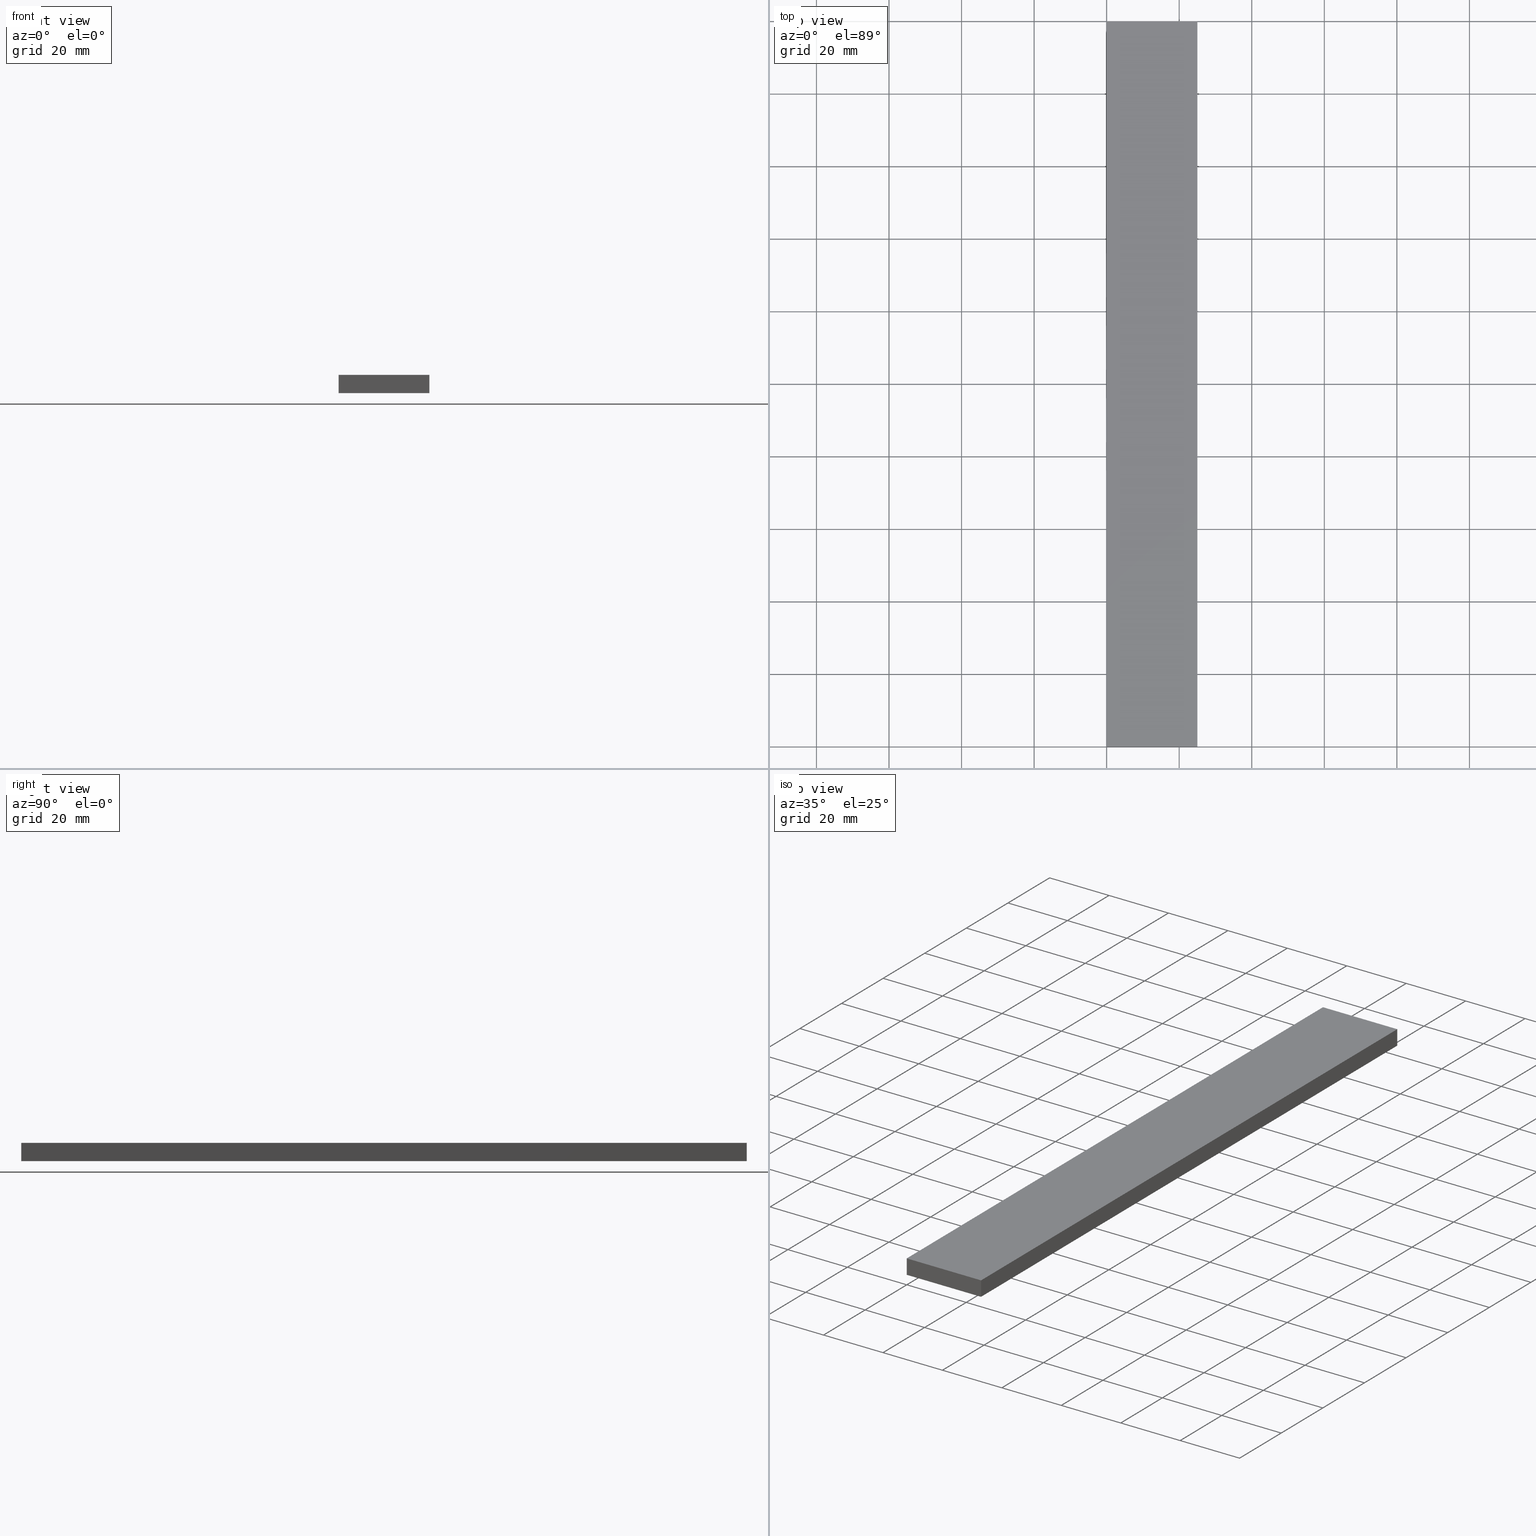
[diagram: canonical four-view strip — front | top / right | iso, engineering-drawing reading convention]
A machine part, canonical four-view strip (front | top / right | iso — engineering-drawing reading convention). The complete STEP part file that produces these views, byte-faithful:
ISO-10303-21;
HEADER;
FILE_DESCRIPTION (( 'STEP AP214' ),
    '1' );
FILE_NAME ('TM_340_5.STEP',
    '2016-05-09T05:15:45',
    ( '' ),
    ( '' ),
    'SwSTEP 2.0',
    'SolidWorks 2015',
    '' );
FILE_SCHEMA (( 'AUTOMOTIVE_DESIGN' ));
ENDSEC;

DATA;
#1 = EDGE_CURVE ( 'NONE', #182, #188, #45, .T. ) ;
#2 = LINE ( 'NONE', #11, #48 ) ;
#3 = CARTESIAN_POINT ( 'NONE',  ( 25.00000000000000000, 1000.000000000000000, 5.000000000000000000 ) ) ;
#4 = APPLICATION_PROTOCOL_DEFINITION ( 'draft international standard', 'automotive_design', 1998, #149 ) ;
#5 = CARTESIAN_POINT ( 'NONE',  ( 0.0000000000000000000, 0.0000000000000000000, 0.0000000000000000000 ) ) ;
#6 = ORIENTED_EDGE ( 'NONE', *, *, #71, .T. ) ;
#7 = SHAPE_REPRESENTATION ( 'rubber foam', ( #110 ), #78 ) ;
#8 = CARTESIAN_POINT ( 'NONE',  ( 0.0000000000000000000, 0.0000000000000000000, 0.0000000000000000000 ) ) ;
#9 = LINE ( 'NONE', #32, #164 ) ;
#10 = CARTESIAN_POINT ( 'NONE',  ( 0.0000000000000000000, 0.0000000000000000000, 0.0000000000000000000 ) ) ;
#11 = CARTESIAN_POINT ( 'NONE',  ( 25.00000000000000000, 0.0000000000000000000, 0.0000000000000000000 ) ) ;
#12 = ORIENTED_EDGE ( 'NONE', *, *, #104, .T. ) ;
#13 = CARTESIAN_POINT ( 'NONE',  ( 0.0000000000000000000, 200.0000000000000000, 5.000000000000000000 ) ) ;
#14 = CARTESIAN_POINT ( 'NONE',  ( 0.0000000000000000000, 0.0000000000000000000, 5.000000000000000000 ) ) ;
#15 = DIRECTION ( 'NONE',  ( 1.000000000000000000, 0.0000000000000000000, 0.0000000000000000000 ) ) ;
#16 = UNCERTAINTY_MEASURE_WITH_UNIT (LENGTH_MEASURE( 1.000000000000000100E-005 ), #224, 'distance_accuracy_value', 'NONE');
#17 = EDGE_CURVE ( 'NONE', #188, #22, #199, .T. ) ;
#18 = ORIENTED_EDGE ( 'NONE', *, *, #126, .T. ) ;
#19 = ADVANCED_FACE ( 'NONE', ( #238 ), #217, .T. ) ;
#20 =( NAMED_UNIT ( * ) PLANE_ANGLE_UNIT ( ) SI_UNIT ( $, .RADIAN. ) );
#21 = ORIENTED_EDGE ( 'NONE', *, *, #1, .T. ) ;
#22 = VERTEX_POINT ( 'NONE', #200 ) ;
#23 = PRODUCT_CONTEXT ( 'NONE', #108, 'mechanical' ) ;
#24 = VECTOR ( 'NONE', #63, 1000.000000000000000 ) ;
#25 = DIRECTION ( 'NONE',  ( 0.0000000000000000000, 0.0000000000000000000, 1.000000000000000000 ) ) ;
#26 = ORIENTED_EDGE ( 'NONE', *, *, #17, .T. ) ;
#27 = DIRECTION ( 'NONE',  ( 1.000000000000000000, 0.0000000000000000000, 0.0000000000000000000 ) ) ;
#28 = ORIENTED_EDGE ( 'NONE', *, *, #38, .F. ) ;
#29 = VECTOR ( 'NONE', #140, 1000.000000000000000 ) ;
#30 = DIRECTION ( 'NONE',  ( -1.000000000000000000, 0.0000000000000000000, 0.0000000000000000000 ) ) ;
#31 = SHAPE_REPRESENTATION_RELATIONSHIP ( 'NONE' , 'NONE' ,  #7, #175 ) ;
#32 = CARTESIAN_POINT ( 'NONE',  ( 25.00000000000000000, 200.0000000000000000, 5.000000000000000000 ) ) ;
#33 = UNCERTAINTY_MEASURE_WITH_UNIT (LENGTH_MEASURE( 1.000000000000000100E-005 ), #167, 'distance_accuracy_value', 'NONE');
#34 = SURFACE_STYLE_FILL_AREA ( #46 ) ;
#35 = EDGE_LOOP ( 'NONE', ( #26, #208, #28, #21 ) ) ;
#36 = ADVANCED_FACE ( 'NONE', ( #112 ), #142, .F. ) ;
#37 = EDGE_LOOP ( 'NONE', ( #18, #118, #174, #12 ) ) ;
#38 = EDGE_CURVE ( 'NONE', #182, #51, #9, .T. ) ;
#39 = VECTOR ( 'NONE', #47, 1000.000000000000000 ) ;
#40 = VECTOR ( 'NONE', #117, 1000.000000000000000 ) ;
#41 = EDGE_CURVE ( 'NONE', #143, #213, #54, .T. ) ;
#42 = APPLICATION_PROTOCOL_DEFINITION ( 'draft international standard', 'automotive_design', 1998, #179 ) ;
#43 = CARTESIAN_POINT ( 'NONE',  ( 0.0000000000000000000, 0.0000000000000000000, 0.0000000000000000000 ) ) ;
#44 = DIRECTION ( 'NONE',  ( 1.000000000000000000, 0.0000000000000000000, 0.0000000000000000000 ) ) ;
#45 = LINE ( 'NONE', #3, #105 ) ;
#46 = FILL_AREA_STYLE ('',( #194 ) ) ;
#47 = DIRECTION ( 'NONE',  ( 0.0000000000000000000, 0.0000000000000000000, 1.000000000000000000 ) ) ;
#48 = VECTOR ( 'NONE', #30, 1000.000000000000000 ) ;
#49 = CARTESIAN_POINT ( 'NONE',  ( 0.0000000000000000000, 1000.000000000000000, 5.000000000000000000 ) ) ;
#50 = DIRECTION ( 'NONE',  ( 1.000000000000000000, 0.0000000000000000000, 0.0000000000000000000 ) ) ;
#51 = VERTEX_POINT ( 'NONE', #53 ) ;
#52 =( NAMED_UNIT ( * ) PLANE_ANGLE_UNIT ( ) SI_UNIT ( $, .RADIAN. ) );
#53 = CARTESIAN_POINT ( 'NONE',  ( 25.00000000000000000, 200.0000000000000000, 0.0000000000000000000 ) ) ;
#54 = LINE ( 'NONE', #75, #218 ) ;
#55 = PRESENTATION_STYLE_ASSIGNMENT (( #151 ) ) ;
#56 = AXIS2_PLACEMENT_3D ( 'NONE', #136, #172, #15 ) ;
#57 = MANIFOLD_SOLID_BREP ( '���߰�1', #69 ) ;
#58 = VERTEX_POINT ( 'NONE', #14 ) ;
#59 = PRODUCT_DEFINITION ( 'UNKNOWN', '', #132, #101 ) ;
#60 = SURFACE_SIDE_STYLE ('',( #34 ) ) ;
#61 = PRODUCT_CONTEXT ( 'NONE', #84, 'mechanical' ) ;
#62 = AXIS2_PLACEMENT_3D ( 'NONE', #169, #114, #184 ) ;
#63 = DIRECTION ( 'NONE',  ( 1.000000000000000000, 0.0000000000000000000, 0.0000000000000000000 ) ) ;
#64 = DIRECTION ( 'NONE',  ( 1.000000000000000000, 0.0000000000000000000, 0.0000000000000000000 ) ) ;
#65 = DIRECTION ( 'NONE',  ( 0.0000000000000000000, -1.000000000000000000, 0.0000000000000000000 ) ) ;
#66 = DIRECTION ( 'NONE',  ( 1.000000000000000000, 0.0000000000000000000, 0.0000000000000000000 ) ) ;
#67 = PRODUCT ( 'rubber foam', 'rubber foam', '', ( #23 ) ) ;
#68 = STYLED_ITEM ( 'NONE', ( #173 ), #57 ) ;
#69 = CLOSED_SHELL ( 'NONE', ( #102, #190, #176, #125, #19, #36 ) ) ;
#70 = SHAPE_DEFINITION_REPRESENTATION ( #231, #91 ) ;
#71 = EDGE_CURVE ( 'NONE', #213, #58, #148, .T. ) ;
#72 = CARTESIAN_POINT ( 'NONE',  ( 25.00000000000000000, 200.0000000000000000, 0.0000000000000000000 ) ) ;
#73 =( LENGTH_UNIT ( ) NAMED_UNIT ( * ) SI_UNIT ( .MILLI., .METRE. ) );
#74 = PRODUCT ( 'TM_340_5', 'TM_340_5', '', ( #61 ) ) ;
#75 = CARTESIAN_POINT ( 'NONE',  ( 0.0000000000000000000, 200.0000000000000000, 0.0000000000000000000 ) ) ;
#76 = LINE ( 'NONE', #72, #226 ) ;
#77 = ORIENTED_EDGE ( 'NONE', *, *, #17, .F. ) ;
#78 =( GEOMETRIC_REPRESENTATION_CONTEXT ( 3 ) GLOBAL_UNCERTAINTY_ASSIGNED_CONTEXT ( ( #85 ) ) GLOBAL_UNIT_ASSIGNED_CONTEXT ( ( #225, #107, #209 ) ) REPRESENTATION_CONTEXT ( 'NONE', 'WORKASPACE' ) );
#79 = LINE ( 'NONE', #196, #24 ) ;
#80 = ORIENTED_EDGE ( 'NONE', *, *, #41, .F. ) ;
#81 = EDGE_LOOP ( 'NONE', ( #109, #237, #77, #197 ) ) ;
#82 = AXIS2_PLACEMENT_3D ( 'NONE', #122, #98, #206 ) ;
#83 = EDGE_CURVE ( 'NONE', #143, #202, #145, .T. ) ;
#84 = APPLICATION_CONTEXT ( 'automotive_design' ) ;
#85 = UNCERTAINTY_MEASURE_WITH_UNIT (LENGTH_MEASURE( 1.000000000000000100E-005 ), #225, 'distance_accuracy_value', 'NONE');
#86 = CARTESIAN_POINT ( 'NONE',  ( 0.0000000000000000000, 0.0000000000000000000, 0.0000000000000000000 ) ) ;
#87 = PRODUCT_DEFINITION ( 'UNKNOWN', '', #103, #92 ) ;
#88 = EDGE_CURVE ( 'NONE', #202, #58, #189, .T. ) ;
#89 = DIRECTION ( 'NONE',  ( 0.0000000000000000000, 0.0000000000000000000, -1.000000000000000000 ) ) ;
#90 = SURFACE_STYLE_FILL_AREA ( #120 ) ;
#91 = SHAPE_REPRESENTATION ( 'TM_340_5', ( #221, #204 ), #210 ) ;
#92 = PRODUCT_DEFINITION_CONTEXT ( 'detailed design', #179, 'design' ) ;
#93 = CARTESIAN_POINT ( 'NONE',  ( 25.00000000000000000, 200.0000000000000000, 5.000000000000000000 ) ) ;
#94 = CARTESIAN_POINT ( 'NONE',  ( 0.0000000000000000000, 0.0000000000000000000, 0.0000000000000000000 ) ) ;
#95 = AXIS2_PLACEMENT_3D ( 'NONE', #49, #89, #211 ) ;
#96 = DIRECTION ( 'NONE',  ( 0.0000000000000000000, 0.0000000000000000000, -1.000000000000000000 ) ) ;
#97 = SURFACE_SIDE_STYLE ('',( #90 ) ) ;
#98 = DIRECTION ( 'NONE',  ( -0.0000000000000000000, 1.000000000000000000, 0.0000000000000000000 ) ) ;
#99 = ORIENTED_EDGE ( 'NONE', *, *, #1, .F. ) ;
#100 = PRESENTATION_LAYER_ASSIGNMENT (  '', '', ( #68 ) ) ;
#101 = PRODUCT_DEFINITION_CONTEXT ( 'detailed design', #149, 'design' ) ;
#102 = ADVANCED_FACE ( 'NONE', ( #232 ), #186, .F. ) ;
#103 = PRODUCT_DEFINITION_FORMATION_WITH_SPECIFIED_SOURCE ( 'ANY', '', #74, .NOT_KNOWN. ) ;
#104 = EDGE_CURVE ( 'NONE', #51, #22, #185, .T. ) ;
#105 = VECTOR ( 'NONE', #65, 1000.000000000000000 ) ;
#106 = PRODUCT_DEFINITION_SHAPE ( 'NONE', 'NONE',  #59 ) ;
#107 =( NAMED_UNIT ( * ) PLANE_ANGLE_UNIT ( ) SI_UNIT ( $, .RADIAN. ) );
#108 = APPLICATION_CONTEXT ( 'automotive_design' ) ;
#109 = ORIENTED_EDGE ( 'NONE', *, *, #88, .F. ) ;
#110 = AXIS2_PLACEMENT_3D ( 'NONE', #86, #198, #64 ) ;
#111 = DIRECTION ( 'NONE',  ( 1.000000000000000000, 0.0000000000000000000, 0.0000000000000000000 ) ) ;
#112 = FACE_OUTER_BOUND ( 'NONE', #81, .T. ) ;
#113 = PLANE ( 'NONE',  #95 ) ;
#114 = DIRECTION ( 'NONE',  ( -1.000000000000000000, 0.0000000000000000000, 0.0000000000000000000 ) ) ;
#115 = MECHANICAL_DESIGN_GEOMETRIC_PRESENTATION_REPRESENTATION (  '', ( #68 ), #127 ) ;
#116 = DIRECTION ( 'NONE',  ( -1.000000000000000000, 0.0000000000000000000, 0.0000000000000000000 ) ) ;
#117 = DIRECTION ( 'NONE',  ( 0.0000000000000000000, -1.000000000000000000, 0.0000000000000000000 ) ) ;
#118 = ORIENTED_EDGE ( 'NONE', *, *, #83, .F. ) ;
#119 = CARTESIAN_POINT ( 'NONE',  ( 0.0000000000000000000, 1000.000000000000000, 5.000000000000000000 ) ) ;
#120 = FILL_AREA_STYLE ('',( #141 ) ) ;
#121 = PRODUCT_RELATED_PRODUCT_CATEGORY ( 'part', '', ( #74 ) ) ;
#122 = CARTESIAN_POINT ( 'NONE',  ( 0.0000000000000000000, 0.0000000000000000000, 0.0000000000000000000 ) ) ;
#123 = ORIENTED_EDGE ( 'NONE', *, *, #88, .T. ) ;
#124 = STYLED_ITEM ( 'NONE', ( #55 ), #175 ) ;
#125 = ADVANCED_FACE ( 'NONE', ( #150 ), #157, .F. ) ;
#126 = EDGE_CURVE ( 'NONE', #22, #202, #2, .T. ) ;
#127 =( GEOMETRIC_REPRESENTATION_CONTEXT ( 3 ) GLOBAL_UNCERTAINTY_ASSIGNED_CONTEXT ( ( #138 ) ) GLOBAL_UNIT_ASSIGNED_CONTEXT ( ( #73, #52, #171 ) ) REPRESENTATION_CONTEXT ( 'NONE', 'WORKASPACE' ) );
#128 = LINE ( 'NONE', #13, #181 ) ;
#129 =( REPRESENTATION_RELATIONSHIP ('NONE','NONE', #91, #7 ) REPRESENTATION_RELATIONSHIP_WITH_TRANSFORMATION ( #203 )SHAPE_REPRESENTATION_RELATIONSHIP( ) );
#130 = EDGE_CURVE ( 'NONE', #213, #182, #128, .T. ) ;
#131 = DIRECTION ( 'NONE',  ( 0.0000000000000000000, 0.0000000000000000000, 1.000000000000000000 ) ) ;
#132 = PRODUCT_DEFINITION_FORMATION_WITH_SPECIFIED_SOURCE ( 'ANY', '', #67, .NOT_KNOWN. ) ;
#133 = CONTEXT_DEPENDENT_SHAPE_REPRESENTATION ( #129, #219 ) ;
#134 = FACE_OUTER_BOUND ( 'NONE', #35, .T. ) ;
#135 = ORIENTED_EDGE ( 'NONE', *, *, #41, .T. ) ;
#136 = CARTESIAN_POINT ( 'NONE',  ( 0.0000000000000000000, 200.0000000000000000, 0.0000000000000000000 ) ) ;
#137 = CARTESIAN_POINT ( 'NONE',  ( 25.00000000000000000, 1000.000000000000000, 0.0000000000000000000 ) ) ;
#138 = UNCERTAINTY_MEASURE_WITH_UNIT (LENGTH_MEASURE( 1.000000000000000100E-005 ), #73, 'distance_accuracy_value', 'NONE');
#139 = PRESENTATION_LAYER_ASSIGNMENT (  '', '', ( #124 ) ) ;
#140 = DIRECTION ( 'NONE',  ( 0.0000000000000000000, -1.000000000000000000, 0.0000000000000000000 ) ) ;
#141 = FILL_AREA_STYLE_COLOUR ( '', #155 ) ;
#142 = PLANE ( 'NONE',  #82 ) ;
#143 = VERTEX_POINT ( 'NONE', #180 ) ;
#144 = EDGE_LOOP ( 'NONE', ( #135, #207, #192, #178 ) ) ;
#145 = LINE ( 'NONE', #235, #29 ) ;
#146 = PRODUCT_RELATED_PRODUCT_CATEGORY ( 'part', '', ( #67 ) ) ;
#147 = EDGE_LOOP ( 'NONE', ( #212, #99, #220, #6 ) ) ;
#148 = LINE ( 'NONE', #119, #223 ) ;
#149 = APPLICATION_CONTEXT ( 'automotive_design' ) ;
#150 = FACE_OUTER_BOUND ( 'NONE', #37, .T. ) ;
#151 = SURFACE_STYLE_USAGE ( .BOTH. , #60 ) ;
#152 = MECHANICAL_DESIGN_GEOMETRIC_PRESENTATION_REPRESENTATION (  '', ( #124 ), #162 ) ;
#153 =( NAMED_UNIT ( * ) PLANE_ANGLE_UNIT ( ) SI_UNIT ( $, .RADIAN. ) );
#154 =( NAMED_UNIT ( * ) SI_UNIT ( $, .STERADIAN. ) SOLID_ANGLE_UNIT ( ) );
#155 = COLOUR_RGB ( '',0.7921568627450980000, 0.8196078431372548800, 0.9333333333333333500 ) ;
#156 = DIRECTION ( 'NONE',  ( 0.0000000000000000000, 0.0000000000000000000, 1.000000000000000000 ) ) ;
#157 = PLANE ( 'NONE',  #183 ) ;
#158 = CARTESIAN_POINT ( 'NONE',  ( 0.0000000000000000000, 1000.000000000000000, 0.0000000000000000000 ) ) ;
#159 = DIRECTION ( 'NONE',  ( 0.0000000000000000000, 0.0000000000000000000, -1.000000000000000000 ) ) ;
#160 = VECTOR ( 'NONE', #96, 1000.000000000000000 ) ;
#161 = EDGE_LOOP ( 'NONE', ( #123, #229, #80, #222 ) ) ;
#162 =( GEOMETRIC_REPRESENTATION_CONTEXT ( 3 ) GLOBAL_UNCERTAINTY_ASSIGNED_CONTEXT ( ( #33 ) ) GLOBAL_UNIT_ASSIGNED_CONTEXT ( ( #167, #153, #154 ) ) REPRESENTATION_CONTEXT ( 'NONE', 'WORKASPACE' ) );
#163 =( NAMED_UNIT ( * ) SI_UNIT ( $, .STERADIAN. ) SOLID_ANGLE_UNIT ( ) );
#164 = VECTOR ( 'NONE', #159, 1000.000000000000000 ) ;
#165 = AXIS2_PLACEMENT_3D ( 'NONE', #158, #50, #170 ) ;
#166 = APPLICATION_PROTOCOL_DEFINITION ( 'draft international standard', 'automotive_design', 1998, #108 ) ;
#167 =( LENGTH_UNIT ( ) NAMED_UNIT ( * ) SI_UNIT ( .MILLI., .METRE. ) );
#168 = CARTESIAN_POINT ( 'NONE',  ( 25.00000000000000000, 0.0000000000000000000, 5.000000000000000000 ) ) ;
#169 = CARTESIAN_POINT ( 'NONE',  ( 25.00000000000000000, 1000.000000000000000, 5.000000000000000000 ) ) ;
#170 = DIRECTION ( 'NONE',  ( 0.0000000000000000000, 0.0000000000000000000, -1.000000000000000000 ) ) ;
#171 =( NAMED_UNIT ( * ) SI_UNIT ( $, .STERADIAN. ) SOLID_ANGLE_UNIT ( ) );
#172 = DIRECTION ( 'NONE',  ( -0.0000000000000000000, 1.000000000000000000, 0.0000000000000000000 ) ) ;
#173 = PRESENTATION_STYLE_ASSIGNMENT (( #205 ) ) ;
#174 = ORIENTED_EDGE ( 'NONE', *, *, #187, .F. ) ;
#175 = ADVANCED_BREP_SHAPE_REPRESENTATION ( '', ( #57, #110 ), #78 ) ;
#176 = ADVANCED_FACE ( 'NONE', ( #134 ), #201, .F. ) ;
#177 = COLOUR_RGB ( '',0.7921568627450980000, 0.8196078431372548800, 0.9333333333333333500 ) ;
#178 = ORIENTED_EDGE ( 'NONE', *, *, #187, .T. ) ;
#179 = APPLICATION_CONTEXT ( 'automotive_design' ) ;
#180 = CARTESIAN_POINT ( 'NONE',  ( 0.0000000000000000000, 200.0000000000000000, 0.0000000000000000000 ) ) ;
#181 = VECTOR ( 'NONE', #66, 1000.000000000000000 ) ;
#182 = VERTEX_POINT ( 'NONE', #93 ) ;
#183 = AXIS2_PLACEMENT_3D ( 'NONE', #215, #156, #27 ) ;
#184 = DIRECTION ( 'NONE',  ( 0.0000000000000000000, 0.0000000000000000000, 1.000000000000000000 ) ) ;
#185 = LINE ( 'NONE', #137, #40 ) ;
#186 = PLANE ( 'NONE',  #165 ) ;
#187 = EDGE_CURVE ( 'NONE', #51, #143, #76, .T. ) ;
#188 = VERTEX_POINT ( 'NONE', #168 ) ;
#189 = LINE ( 'NONE', #94, #39 ) ;
#190 = ADVANCED_FACE ( 'NONE', ( #193 ), #113, .F. ) ;
#191 = AXIS2_PLACEMENT_3D ( 'NONE', #10, #25, #111 ) ;
#192 = ORIENTED_EDGE ( 'NONE', *, *, #38, .T. ) ;
#193 = FACE_OUTER_BOUND ( 'NONE', #147, .T. ) ;
#194 = FILL_AREA_STYLE_COLOUR ( '', #177 ) ;
#195 = APPLICATION_PROTOCOL_DEFINITION ( 'draft international standard', 'automotive_design', 1998, #84 ) ;
#196 = CARTESIAN_POINT ( 'NONE',  ( 0.0000000000000000000, 0.0000000000000000000, 5.000000000000000000 ) ) ;
#197 = ORIENTED_EDGE ( 'NONE', *, *, #234, .F. ) ;
#198 = DIRECTION ( 'NONE',  ( 0.0000000000000000000, 0.0000000000000000000, 1.000000000000000000 ) ) ;
#199 = LINE ( 'NONE', #233, #160 ) ;
#200 = CARTESIAN_POINT ( 'NONE',  ( 25.00000000000000000, 0.0000000000000000000, 0.0000000000000000000 ) ) ;
#201 = PLANE ( 'NONE',  #62 ) ;
#202 = VERTEX_POINT ( 'NONE', #43 ) ;
#203 = ITEM_DEFINED_TRANSFORMATION ( 'NONE', 'NONE', #204,  #110 ) ;
#204 = AXIS2_PLACEMENT_3D ( 'NONE', #8, #228, #44 ) ;
#205 = SURFACE_STYLE_USAGE ( .BOTH. , #97 ) ;
#206 = DIRECTION ( 'NONE',  ( 1.000000000000000000, 0.0000000000000000000, 0.0000000000000000000 ) ) ;
#207 = ORIENTED_EDGE ( 'NONE', *, *, #130, .T. ) ;
#208 = ORIENTED_EDGE ( 'NONE', *, *, #104, .F. ) ;
#209 =( NAMED_UNIT ( * ) SI_UNIT ( $, .STERADIAN. ) SOLID_ANGLE_UNIT ( ) );
#210 =( GEOMETRIC_REPRESENTATION_CONTEXT ( 3 ) GLOBAL_UNCERTAINTY_ASSIGNED_CONTEXT ( ( #16 ) ) GLOBAL_UNIT_ASSIGNED_CONTEXT ( ( #224, #20, #163 ) ) REPRESENTATION_CONTEXT ( 'NONE', 'WORKASPACE' ) );
#211 = DIRECTION ( 'NONE',  ( -1.000000000000000000, 0.0000000000000000000, 0.0000000000000000000 ) ) ;
#212 = ORIENTED_EDGE ( 'NONE', *, *, #234, .T. ) ;
#213 = VERTEX_POINT ( 'NONE', #230 ) ;
#214 = SHAPE_DEFINITION_REPRESENTATION ( #106, #7 ) ;
#215 = CARTESIAN_POINT ( 'NONE',  ( 25.00000000000000000, 1000.000000000000000, 0.0000000000000000000 ) ) ;
#216 = DIRECTION ( 'NONE',  ( 0.0000000000000000000, -1.000000000000000000, 0.0000000000000000000 ) ) ;
#217 = PLANE ( 'NONE',  #56 ) ;
#218 = VECTOR ( 'NONE', #236, 1000.000000000000000 ) ;
#219 = PRODUCT_DEFINITION_SHAPE ( 'NONE', 'NONE',  #239 ) ;
#220 = ORIENTED_EDGE ( 'NONE', *, *, #130, .F. ) ;
#221 = AXIS2_PLACEMENT_3D ( 'NONE', #5, #131, #227 ) ;
#222 = ORIENTED_EDGE ( 'NONE', *, *, #83, .T. ) ;
#223 = VECTOR ( 'NONE', #216, 1000.000000000000000 ) ;
#224 =( LENGTH_UNIT ( ) NAMED_UNIT ( * ) SI_UNIT ( .MILLI., .METRE. ) );
#225 =( LENGTH_UNIT ( ) NAMED_UNIT ( * ) SI_UNIT ( .MILLI., .METRE. ) );
#226 = VECTOR ( 'NONE', #116, 1000.000000000000000 ) ;
#227 = DIRECTION ( 'NONE',  ( 1.000000000000000000, 0.0000000000000000000, 0.0000000000000000000 ) ) ;
#228 = DIRECTION ( 'NONE',  ( 0.0000000000000000000, 0.0000000000000000000, 1.000000000000000000 ) ) ;
#229 = ORIENTED_EDGE ( 'NONE', *, *, #71, .F. ) ;
#230 = CARTESIAN_POINT ( 'NONE',  ( 0.0000000000000000000, 200.0000000000000000, 5.000000000000000000 ) ) ;
#231 = PRODUCT_DEFINITION_SHAPE ( 'NONE', 'NONE',  #87 ) ;
#232 = FACE_OUTER_BOUND ( 'NONE', #161, .T. ) ;
#233 = CARTESIAN_POINT ( 'NONE',  ( 25.00000000000000000, 0.0000000000000000000, 5.000000000000000000 ) ) ;
#234 = EDGE_CURVE ( 'NONE', #58, #188, #79, .T. ) ;
#235 = CARTESIAN_POINT ( 'NONE',  ( 0.0000000000000000000, 1000.000000000000000, 0.0000000000000000000 ) ) ;
#236 = DIRECTION ( 'NONE',  ( 0.0000000000000000000, 0.0000000000000000000, 1.000000000000000000 ) ) ;
#237 = ORIENTED_EDGE ( 'NONE', *, *, #126, .F. ) ;
#238 = FACE_OUTER_BOUND ( 'NONE', #144, .T. ) ;
#239 = NEXT_ASSEMBLY_USAGE_OCCURRENCE ( 'NAUO1', ' ', ' ', #87, #59, $ ) ;
ENDSEC;
END-ISO-10303-21;
